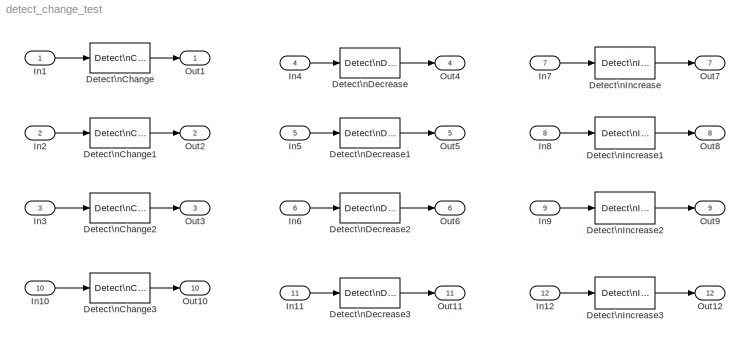
MODEL detect_change_test
KIND model
BLOCK [Reference] Detect\nChange  REF=simulink/Logic and Bit\nOperations/Detect\nChange
  InputProcessing = Inherited
  OutDataTypeStr = boolean
  Ports = [1, 1]
  SID = 76
  SourceBlock = simulink/Logic and Bit\nOperations/Detect\nChange
  SourceProductBaseCode = SL
  SourceProductName = Simulink
  SourceType = Detect Change
  vinit = 0
BLOCK [Reference] Detect\nChange1  REF=simulink/Logic and Bit\nOperations/Detect\nChange
  InputProcessing = Inherited
  OutDataTypeStr = boolean
  Ports = [1, 1]
  SID = 78
  SourceBlock = simulink/Logic and Bit\nOperations/Detect\nChange
  SourceProductBaseCode = SL
  SourceProductName = Simulink
  SourceType = Detect Change
  vinit = 0
BLOCK [Reference] Detect\nChange2  REF=simulink/Logic and Bit\nOperations/Detect\nChange
  InputProcessing = Inherited
  OutDataTypeStr = boolean
  Ports = [1, 1]
  SID = 81
  SourceBlock = simulink/Logic and Bit\nOperations/Detect\nChange
  SourceProductBaseCode = SL
  SourceProductName = Simulink
  SourceType = Detect Change
  vinit = 0
BLOCK [Reference] Detect\nChange3  REF=simulink/Logic and Bit\nOperations/Detect\nChange
  InputProcessing = Inherited
  OutDataTypeStr = boolean
  Ports = [1, 1]
  SID = 106
  SourceBlock = simulink/Logic and Bit\nOperations/Detect\nChange
  SourceProductBaseCode = SL
  SourceProductName = Simulink
  SourceType = Detect Change
  vinit = 0
BLOCK [Reference] Detect\nDecrease  REF=simulink/Logic and Bit\nOperations/Detect\nDecrease
  InputProcessing = Inherited
  OutDataTypeStr = boolean
  Ports = [1, 1]
  SID = 83
  SourceBlock = simulink/Logic and Bit\nOperations/Detect\nDecrease
  SourceProductBaseCode = SL
  SourceProductName = Simulink
  SourceType = Detect Decrease
  vinit = 0.0
BLOCK [Reference] Detect\nDecrease1  REF=simulink/Logic and Bit\nOperations/Detect\nDecrease
  InputProcessing = Inherited
  OutDataTypeStr = boolean
  Ports = [1, 1]
  SID = 87
  SourceBlock = simulink/Logic and Bit\nOperations/Detect\nDecrease
  SourceProductBaseCode = SL
  SourceProductName = Simulink
  SourceType = Detect Decrease
  vinit = 0.0
BLOCK [Reference] Detect\nDecrease2  REF=simulink/Logic and Bit\nOperations/Detect\nDecrease
  InputProcessing = Inherited
  OutDataTypeStr = boolean
  Ports = [1, 1]
  SID = 88
  SourceBlock = simulink/Logic and Bit\nOperations/Detect\nDecrease
  SourceProductBaseCode = SL
  SourceProductName = Simulink
  SourceType = Detect Decrease
  vinit = 0.0
BLOCK [Reference] Detect\nDecrease3  REF=simulink/Logic and Bit\nOperations/Detect\nDecrease
  InputProcessing = Inherited
  OutDataTypeStr = boolean
  Ports = [1, 1]
  SID = 107
  SourceBlock = simulink/Logic and Bit\nOperations/Detect\nDecrease
  SourceProductBaseCode = SL
  SourceProductName = Simulink
  SourceType = Detect Decrease
  vinit = 0.0
BLOCK [Reference] Detect\nIncrease  REF=simulink/Logic and Bit\nOperations/Detect\nIncrease
  InputProcessing = Inherited
  OutDataTypeStr = boolean
  Ports = [1, 1]
  SID = 84
  SourceBlock = simulink/Logic and Bit\nOperations/Detect\nIncrease
  SourceProductBaseCode = SL
  SourceProductName = Simulink
  SourceType = Detect Increase
  vinit = 0.0
BLOCK [Reference] Detect\nIncrease1  REF=simulink/Logic and Bit\nOperations/Detect\nIncrease
  InputProcessing = Inherited
  OutDataTypeStr = boolean
  Ports = [1, 1]
  SID = 92
  SourceBlock = simulink/Logic and Bit\nOperations/Detect\nIncrease
  SourceProductBaseCode = SL
  SourceProductName = Simulink
  SourceType = Detect Increase
  vinit = 0.0
BLOCK [Reference] Detect\nIncrease2  REF=simulink/Logic and Bit\nOperations/Detect\nIncrease
  InputProcessing = Inherited
  OutDataTypeStr = boolean
  Ports = [1, 1]
  SID = 93
  SourceBlock = simulink/Logic and Bit\nOperations/Detect\nIncrease
  SourceProductBaseCode = SL
  SourceProductName = Simulink
  SourceType = Detect Increase
  vinit = 0.0
BLOCK [Reference] Detect\nIncrease3  REF=simulink/Logic and Bit\nOperations/Detect\nIncrease
  InputProcessing = Inherited
  OutDataTypeStr = boolean
  Ports = [1, 1]
  SID = 108
  SourceBlock = simulink/Logic and Bit\nOperations/Detect\nIncrease
  SourceProductBaseCode = SL
  SourceProductName = Simulink
  SourceType = Detect Increase
  vinit = 0.0
BLOCK [Inport] In1
  IconDisplay = Port number
  PortDimensions = 1
  SID = 1
BLOCK [Inport] In10
  IconDisplay = Port number
  OutDataTypeStr = boolean
  Port = 10
  PortDimensions = 1
  SID = 103
BLOCK [Inport] In11
  IconDisplay = Port number
  OutDataTypeStr = boolean
  Port = 11
  PortDimensions = 1
  SID = 104
BLOCK [Inport] In12
  IconDisplay = Port number
  OutDataTypeStr = boolean
  Port = 12
  PortDimensions = 1
  SID = 105
BLOCK [Inport] In2
  IconDisplay = Port number
  Port = 2
  PortDimensions = 5
  SID = 77
BLOCK [Inport] In3
  IconDisplay = Port number
  OutDataTypeStr = int8
  Port = 3
  PortDimensions = [2 3]
  SID = 80
BLOCK [Inport] In4
  IconDisplay = Port number
  Port = 4
  PortDimensions = 1
  SID = 89
BLOCK [Inport] In5
  IconDisplay = Port number
  Port = 5
  PortDimensions = 5
  SID = 90
BLOCK [Inport] In6
  IconDisplay = Port number
  OutDataTypeStr = int8
  Port = 6
  PortDimensions = [2 3]
  SID = 91
BLOCK [Inport] In7
  IconDisplay = Port number
  Port = 7
  PortDimensions = 1
  SID = 94
BLOCK [Inport] In8
  IconDisplay = Port number
  Port = 8
  PortDimensions = 5
  SID = 95
BLOCK [Inport] In9
  IconDisplay = Port number
  OutDataTypeStr = int8
  Port = 9
  PortDimensions = [2 3]
  SID = 96
BLOCK [Outport] Out1
  IconDisplay = Port number
  SID = 55
BLOCK [Outport] Out10
  IconDisplay = Port number
  Port = 10
  SID = 109
BLOCK [Outport] Out11
  IconDisplay = Port number
  Port = 11
  SID = 110
BLOCK [Outport] Out12
  IconDisplay = Port number
  Port = 12
  SID = 111
BLOCK [Outport] Out2
  IconDisplay = Port number
  Port = 2
  SID = 79
BLOCK [Outport] Out3
  IconDisplay = Port number
  Port = 3
  SID = 82
BLOCK [Outport] Out4
  IconDisplay = Port number
  Port = 4
  SID = 97
BLOCK [Outport] Out5
  IconDisplay = Port number
  Port = 5
  SID = 98
BLOCK [Outport] Out6
  IconDisplay = Port number
  Port = 6
  SID = 99
BLOCK [Outport] Out7
  IconDisplay = Port number
  Port = 7
  SID = 100
BLOCK [Outport] Out8
  IconDisplay = Port number
  Port = 8
  SID = 101
BLOCK [Outport] Out9
  IconDisplay = Port number
  Port = 9
  SID = 102
LINE Detect\nChange1:1 -> Out2:1
LINE Detect\nChange2:1 -> Out3:1
LINE Detect\nChange3:1 -> Out10:1
LINE Detect\nChange:1 -> Out1:1
LINE Detect\nDecrease1:1 -> Out5:1
LINE Detect\nDecrease2:1 -> Out6:1
LINE Detect\nDecrease3:1 -> Out11:1
LINE Detect\nDecrease:1 -> Out4:1
LINE Detect\nIncrease1:1 -> Out8:1
LINE Detect\nIncrease2:1 -> Out9:1
LINE Detect\nIncrease3:1 -> Out12:1
LINE Detect\nIncrease:1 -> Out7:1
LINE In10:1 -> Detect\nChange3:1
LINE In11:1 -> Detect\nDecrease3:1
LINE In12:1 -> Detect\nIncrease3:1
LINE In1:1 -> Detect\nChange:1
LINE In2:1 -> Detect\nChange1:1
LINE In3:1 -> Detect\nChange2:1
LINE In4:1 -> Detect\nDecrease:1
LINE In5:1 -> Detect\nDecrease1:1
LINE In6:1 -> Detect\nDecrease2:1
LINE In7:1 -> Detect\nIncrease:1
LINE In8:1 -> Detect\nIncrease1:1
LINE In9:1 -> Detect\nIncrease2:1
